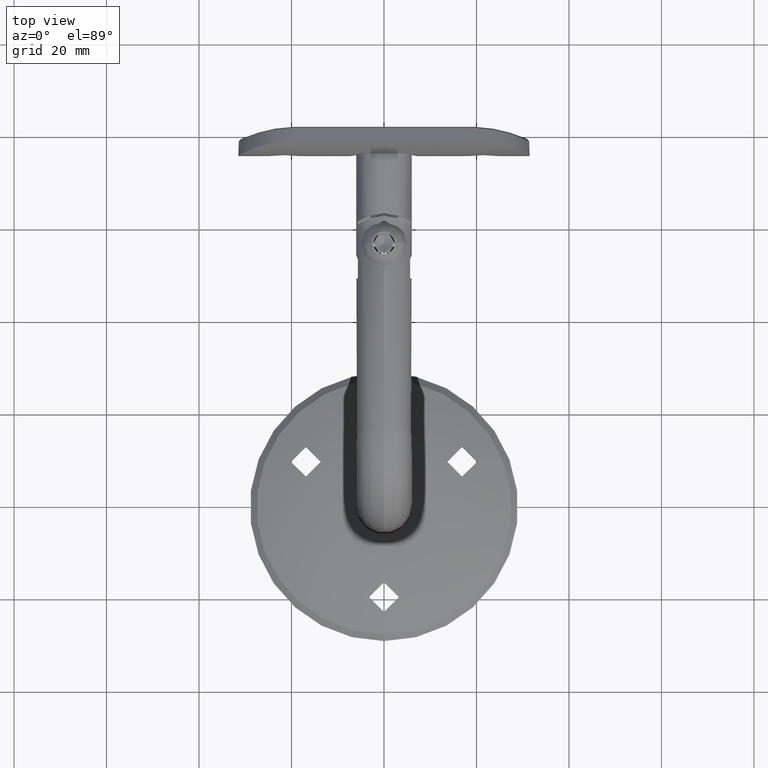
[diagram: clean part render]
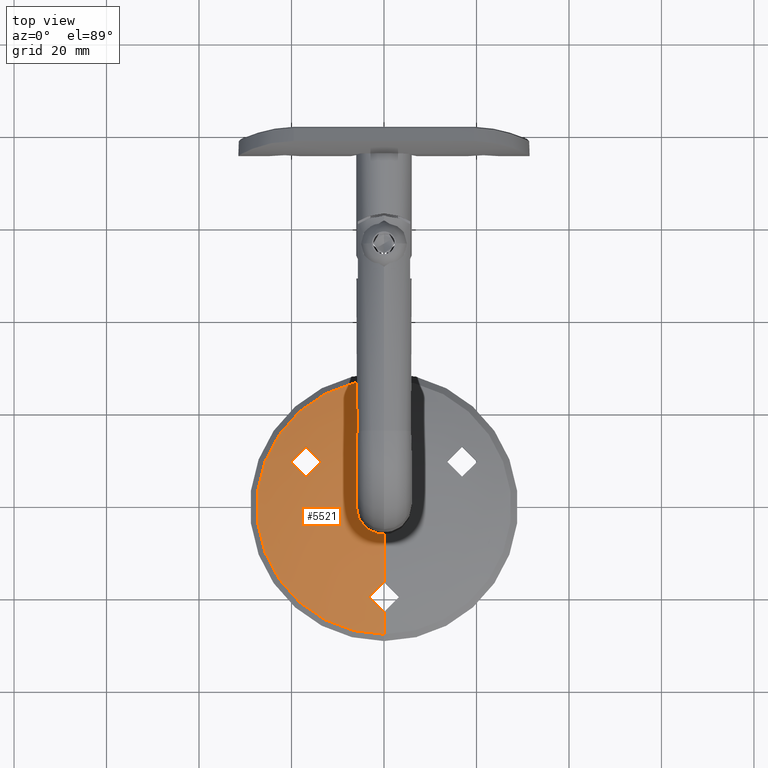
[diagram: same view with one face highlighted and labeled with its STEP entity id]
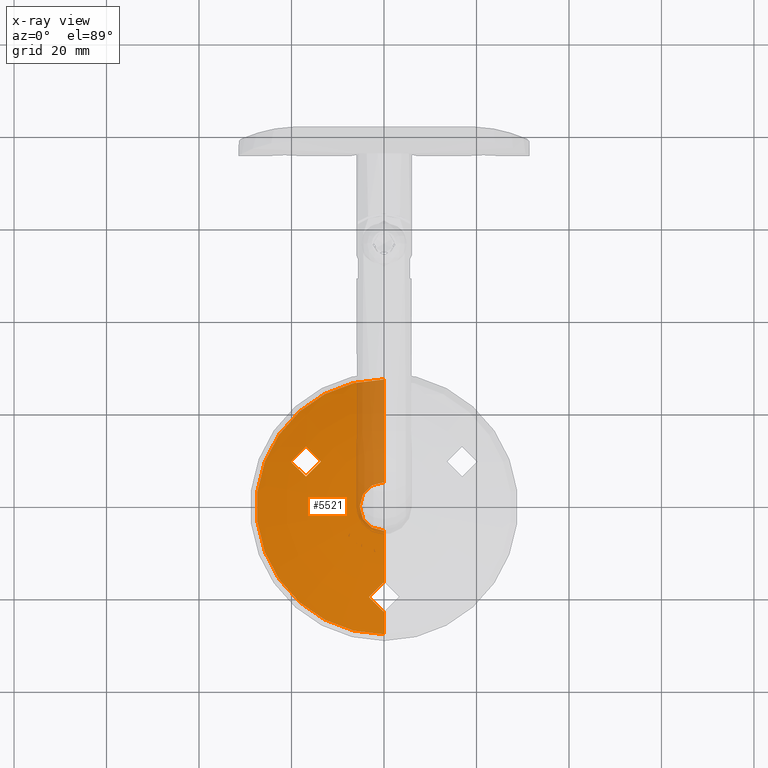
[diagram: x-ray of the same camera — body ghosted, the highlighted face saturated]
A machine part, top view. The second image highlights one B-rep face of the part: STEP entity #5521.
The next image is the same camera in x-ray: the body ghosted, the highlighted face saturated — about 13% of this face is hidden behind the body in this view.
In plain terms, the highlighted toroidal blend (fillet) surface has major radius 5.25 mm and minor (blend) radius 70.5081 mm.
Its self-contained STEP definition (entity closure, byte-faithful):
#36 = CIRCLE ( 'NONE', #8325, 27.54999999999999716 ) ;
#103 = CARTESIAN_POINT ( 'NONE',  ( -19.96137476404623357, 6.039042660600626888, -8.673453458701036567 ) ) ;
#159 = CARTESIAN_POINT ( 'NONE',  ( -4.609694209175250853E-14, 5.793744438677357778, 22.75000000000109779 ) ) ;
#479 = ORIENTED_EDGE ( 'NONE', *, *, #9711, .T. ) ;
#720 = CARTESIAN_POINT ( 'NONE',  ( -3.166677742492574055, 6.662795183297255619, 18.65648535947543607 ) ) ;
#1072 = CARTESIAN_POINT ( 'NONE',  ( -15.46132909030571234, 6.441415955272104199, -12.67786978009806198 ) ) ;
#1115 = CARTESIAN_POINT ( 'NONE',  ( -15.44834657022301094, 7.032808200617978400, -6.828267959478819371 ) ) ;
#1278 = CARTESIAN_POINT ( 'NONE',  ( -14.32056523321980812, 6.738997915008046569, -11.75449133307809824 ) ) ;
#1328 = CARTESIAN_POINT ( 'NONE',  ( -20.13938038033285238, 5.868821188330352712, -9.932309515252411458 ) ) ;
#1386 = CARTESIAN_POINT ( 'NONE',  ( -19.73738698471576569, 5.787608313314743569, -11.36976278019478137 ) ) ;
#1419 = CARTESIAN_POINT ( 'NONE',  ( -14.43336921041712273, 7.126429179213712217, -7.608592909778308488 ) ) ;
#1453 = CARTESIAN_POINT ( 'NONE',  ( -16.88749537379636934, 6.820047322506161080, -6.499999999999994671 ) ) ;
#1455 = CARTESIAN_POINT ( 'NONE',  ( -16.88749537381466581, 6.146212153112459831, -12.99999999999999467 ) ) ;
#1671 = FACE_OUTER_BOUND ( 'NONE', #3727, .T. ) ;
#1708 = CIRCLE ( 'NONE', #5823, 70.50805198092858461 ) ;
#1759 = VERTEX_POINT ( 'NONE', #1453 ) ;
#1951 = B_SPLINE_CURVE_WITH_KNOTS ( 'NONE', 3,
 ( #159, #9405, #15177, #4829, #16630, #18282, #13858, #8022, #12209, #15363, #15240, #6361, #4898, #15297, #10910, #12388, #6552, #2025, #720, #6424, #7770, #16828, #18161, #16695, #10845, #6488, #7893, #18035, #10973, #2082 ),
 .UNSPECIFIED., .F., .F.,
 ( 4, 2, 2, 2, 2, 2, 2, 2, 2, 2, 2, 2, 2, 2, 4 ),
 ( 0.01461833646250698324, 0.01525996222272465661, 0.01590158798294232997, 0.01654321374316000681, 0.01718483950337768018, 0.01782646526359535355, 0.01846809102381302692, 0.01910971678403070029, 0.01975134254424837713, 0.02103459406468373427, 0.02231784558511909142, 0.02295947134533677519, 0.02360109710555445550, 0.02424272286577213928, 0.02488434862598981959 ),
 .UNSPECIFIED. ) ;
#2025 = CARTESIAN_POINT ( 'NONE',  ( -3.250604130810204939, 6.575917868337124439, 19.08099595883461674 ) ) ;
#2082 = CARTESIAN_POINT ( 'NONE',  ( 1.992262963256047854E-15, 7.136656318735704829, 16.24999999999999645 ) ) ;
#2348 = CARTESIAN_POINT ( 'NONE',  ( -16.88749537379636934, 6.820047322506161080, -6.499999999999994671 ) ) ;
#2556 = CARTESIAN_POINT ( 'NONE',  ( -15.27340801719645569, 6.485603780500401427, -12.57875547102293901 ) ) ;
#2601 = CARTESIAN_POINT ( 'NONE',  ( -16.04682561275656383, 6.953882947119673474, -6.603353883330276730 ) ) ;
#2626 = CARTESIAN_POINT ( 'NONE',  ( -15.25812621377190936, 7.054774012848352704, -6.929719668702913893 ) ) ;
#2685 = CARTESIAN_POINT ( 'NONE',  ( -16.46751255589565943, 6.226057270874720828, -12.97973465348839284 ) ) ;
#2701 = CARTESIAN_POINT ( 'NONE',  ( -13.98145540347557514, 6.851296440063799231, -11.22054059266102044 ) ) ;
#2868 = CARTESIAN_POINT ( 'NONE',  ( -17.93120958819713451, 5.969181775287405678, -12.83522427435549318 ) ) ;
#3040 = AXIS2_PLACEMENT_3D ( 'NONE', #16933, #17060, #3811 ) ;
#3182 = VERTEX_POINT ( 'NONE', #4195 ) ;
#3352 = CARTESIAN_POINT ( 'NONE',  ( 0.000000000000000000, -62.50805198092858461, 0.000000000000000000 ) ) ;
#3489 = DIRECTION ( 'NONE',  ( 0.000000000000000000, 0.000000000000000000, -1.000000000000000000 ) ) ;
#3592 = EDGE_CURVE ( 'NONE', #12844, #4355, #1708, .T. ) ;
#3606 = ORIENTED_EDGE ( 'NONE', *, *, #10666, .F. ) ;
#3727 = EDGE_LOOP ( 'NONE', ( #14391, #479, #16973, #18154, #3606, #14074 ) ) ;
#3811 = DIRECTION ( 'NONE',  ( -1.224646799147353207E-16, 0.000000000000000000, -1.000000000000000000 ) ) ;
#3851 = CARTESIAN_POINT ( 'NONE',  ( -16.67621779645669022, 6.856580477207796065, -6.500000000000007994 ) ) ;
#4195 = CARTESIAN_POINT ( 'NONE',  ( -16.88749537381466581, 6.146212153112459831, -12.99999999999999467 ) ) ;
#4209 = CARTESIAN_POINT ( 'NONE',  ( -13.63554723584043060, 7.071473833728807001, -9.566437804260287336 ) ) ;
#4317 = CARTESIAN_POINT ( 'NONE',  ( -19.79495921775694711, 6.112170120605252777, -8.282232662358389064 ) ) ;
#4355 = VERTEX_POINT ( 'NONE', #6690 ) ;
#4452 = CARTESIAN_POINT ( 'NONE',  ( -20.12060868951598636, 5.849173073577747850, -10.14443995163661327 ) ) ;
#4513 = CARTESIAN_POINT ( 'NONE',  ( -20.13531521472196317, 5.916116254931264251, -9.505747802510539302 ) ) ;
#4607 = CIRCLE ( 'NONE', #7357, 70.50805198092858461 ) ;
#4829 = CARTESIAN_POINT ( 'NONE',  ( -0.8494870458024148530, 5.816924342189370378, 22.64438324407443304 ) ) ;
#4898 = CARTESIAN_POINT ( 'NONE',  ( -2.925324134352727867, 6.187612174745771298, 20.93161279124760199 ) ) ;
#5399 = ORIENTED_EDGE ( 'NONE', *, *, #6839, .T. ) ;
#5521 = ADVANCED_FACE ( 'NONE', ( #1671, #16820 ), #8305, .T. ) ;
#5608 = DIRECTION ( 'NONE',  ( 0.000000000000000000, -1.000000000000000000, 0.000000000000000000 ) ) ;
#5643 = CARTESIAN_POINT ( 'NONE',  ( -13.79597766813787452, 7.125284141914178804, -8.724564337970335259 ) ) ;
#5669 = CARTESIAN_POINT ( 'NONE',  ( 0.000000000000000000, 4.380627137030746354, 0.000000000000000000 ) ) ;
#5697 = CARTESIAN_POINT ( 'NONE',  ( -13.65488840670230708, 7.088774160865691343, -9.352119876174844748 ) ) ;
#5816 = CARTESIAN_POINT ( 'NONE',  ( -19.01880885926125586, 6.360689461337947215, -7.287253841720520597 ) ) ;
#5823 = AXIS2_PLACEMENT_3D ( 'NONE', #8564, #15980, #13259 ) ;
#5902 = DIRECTION ( 'NONE',  ( 0.000000000000000000, 0.000000000000000000, 1.000000000000000000 ) ) ;
#5981 = VERTEX_POINT ( 'NONE', #13335 ) ;
#6002 = CARTESIAN_POINT ( 'NONE',  ( -19.32121732681181570, 6.273960264196771774, -7.585603255210444651 ) ) ;
#6361 = CARTESIAN_POINT ( 'NONE',  ( -2.826873719888854719, 6.147892731092166052, 21.11741263777578936 ) ) ;
#6424 = CARTESIAN_POINT ( 'NONE',  ( -2.847666753398638395, 6.819799524599233109, 17.87822352490695366 ) ) ;
#6443 = DIRECTION ( 'NONE',  ( 0.000000000000000000, -1.000000000000000000, 0.000000000000000000 ) ) ;
#6488 = CARTESIAN_POINT ( 'NONE',  ( -1.057765374599709096, 7.104450353168404675, 16.41950708597058295 ) ) ;
#6552 = CARTESIAN_POINT ( 'NONE',  ( -3.249692923267132105, 6.443997527936556224, 19.71649204351626139 ) ) ;
#6690 = CARTESIAN_POINT ( 'NONE',  ( 1.992262963256047854E-15, 7.136656318735704829, 16.24999999999999645 ) ) ;
#6839 = EDGE_CURVE ( 'NONE', #3182, #1759, #10197, .T. ) ;
#6903 = CARTESIAN_POINT ( 'NONE',  ( -18.31783265609580269, 6.535477613177278933, -6.824048862705085483 ) ) ;
#7107 = CARTESIAN_POINT ( 'NONE',  ( -13.63975360178866403, 7.029294195318215088, -9.997052937679622886 ) ) ;
#7165 = CARTESIAN_POINT ( 'NONE',  ( -14.08270271650012617, 6.815417133955788742, -11.40537125762248039 ) ) ;
#7186 = VERTEX_POINT ( 'NONE', #17203 ) ;
#7216 = CARTESIAN_POINT ( 'NONE',  ( -19.03625999361851484, 5.829979597320061657, -12.19788801209112705 ) ) ;
#7282 = CARTESIAN_POINT ( 'NONE',  ( -19.49469659803568788, 5.793339938569650016, -11.73805991380500835 ) ) ;
#7357 = AXIS2_PLACEMENT_3D ( 'NONE', #15922, #17383, #5902 ) ;
#7770 = CARTESIAN_POINT ( 'NONE',  ( -2.608203380103311098, 6.891792059849414009, 17.51523007573061008 ) ) ;
#7893 = CARTESIAN_POINT ( 'NONE',  ( -0.8489279095186406110, 7.116619733217722121, 16.35553845011500584 ) ) ;
#8022 = CARTESIAN_POINT ( 'NONE',  ( -1.996075206246976874, 5.941531170650627303, 22.07379021109564832 ) ) ;
#8192 = EDGE_CURVE ( 'NONE', #1759, #3182, #16629, .T. ) ;
#8305 = TOROIDAL_SURFACE ( 'NONE', #12950, 5.250000000000000000, 70.50805198092858461 ) ;
#8325 = AXIS2_PLACEMENT_3D ( 'NONE', #5669, #5608, #11313 ) ;
#8495 = CARTESIAN_POINT ( 'NONE',  ( -17.31286820643705937, 6.744107652333877212, -6.521071669316895303 ) ) ;
#8564 = CARTESIAN_POINT ( 'NONE',  ( 6.429395695523604153E-16, -62.50805198092858461, 5.250000000000000000 ) ) ;
#8566 = CARTESIAN_POINT ( 'NONE',  ( -14.45827733477081445, 6.698212812521322057, -11.91922808120207300 ) ) ;
#8667 = CARTESIAN_POINT ( 'NONE',  ( -20.04061380268973735, 5.818140152859966108, -10.56636313066158905 ) ) ;
#8728 = CARTESIAN_POINT ( 'NONE',  ( -17.09808489436565182, 6.107172339728258237, -12.99999999999882760 ) ) ;
#8772 = DIRECTION ( 'NONE',  ( 0.000000000000000000, -1.000000000000000000, 0.000000000000000000 ) ) ;
#9390 = CARTESIAN_POINT ( 'NONE',  ( -4.609694209175250853E-14, 5.793744438677357778, 22.75000000000109779 ) ) ;
#9405 = CARTESIAN_POINT ( 'NONE',  ( -0.2147862826052898411, 5.793744438677607356, 22.75000000000000711 ) ) ;
#9711 = EDGE_CURVE ( 'NONE', #12844, #5981, #13078, .T. ) ;
#9776 = CARTESIAN_POINT ( 'NONE',  ( -17.92734521113940005, 6.621507180969622652, -6.663615851072540508 ) ) ;
#9906 = CARTESIAN_POINT ( 'NONE',  ( -14.90043892189490471, 7.091230476169230634, -7.169218788099881223 ) ) ;
#10082 = CARTESIAN_POINT ( 'NONE',  ( -18.32528665999805284, 5.912679359765666831, -12.67244835741151654 ) ) ;
#10146 = CARTESIAN_POINT ( 'NONE',  ( -20.11175787295643147, 5.944038107920170511, -9.290019162790699170 ) ) ;
#10197 = B_SPLINE_CURVE_WITH_KNOTS ( 'NONE', 3,
 ( #14347, #17166, #2685, #18643, #17300, #1072, #2556, #12799, #14283, #8566, #1278, #7165, #2701, #18849, #13011, #11540, #7107, #4209, #5697, #12940, #5643, #15984, #15916, #17377, #1419, #12530, #9906, #2626, #1115, #11316, #2601, #12655, #3851, #2348 ),
 .UNSPECIFIED., .F., .F.,
 ( 4, 2, 2, 2, 2, 2, 2, 2, 2, 2, 2, 2, 2, 2, 2, 2, 4 ),
 ( 0.002592582207815472689, 0.003234283589836495741, 0.003875984971857518360, 0.004517686353878540978, 0.005159387735899564030, 0.005801089117920587082, 0.006442790499941609267, 0.007084491881962632319, 0.007726193263983655371, 0.008367894646004677556, 0.009009596028025701475, 0.009651297410046723660, 0.01029299879206774238, 0.01093470017408876456, 0.01157640155610978501, 0.01221810293813080546, 0.01285980432015182591 ),
 .UNSPECIFIED. ) ;
#10341 = CARTESIAN_POINT ( 'NONE',  ( -19.69232514340022178, 6.151313508692281218, -8.094843231738192202 ) ) ;
#10666 = EDGE_CURVE ( 'NONE', #12664, #16248, #17649, .T. ) ;
#10845 = CARTESIAN_POINT ( 'NONE',  ( -1.452592685227002800, 7.072825445408654765, 16.58481927285588142 ) ) ;
#10910 = CARTESIAN_POINT ( 'NONE',  ( -3.147483796427492209, 6.313905140032782803, 20.33654291387544433 ) ) ;
#10973 = CARTESIAN_POINT ( 'NONE',  ( -0.2161994990050964960, 7.136656318735712823, 16.24999999999999289 ) ) ;
#11313 = DIRECTION ( 'NONE',  ( 0.000000000000000000, 0.000000000000000000, -1.000000000000000000 ) ) ;
#11316 = CARTESIAN_POINT ( 'NONE',  ( -15.84109508301126468, 6.982569746815600276, -6.665731233034376757 ) ) ;
#11526 = CARTESIAN_POINT ( 'NONE',  ( -17.09881123439759421, 6.783507548037593260, -6.499999999999981348 ) ) ;
#11540 = CARTESIAN_POINT ( 'NONE',  ( -13.66300674071431587, 7.004931552799104288, -10.20848115230000808 ) ) ;
#11649 = CARTESIAN_POINT ( 'NONE',  ( -20.02467087558884629, 6.005396747237801591, -8.875025197481276606 ) ) ;
#11841 = CARTESIAN_POINT ( 'NONE',  ( -18.87099154800128176, 5.846498663725057554, -12.33334249040133024 ) ) ;
#12037 = EDGE_LOOP ( 'NONE', ( #5399, #18074 ) ) ;
#12209 = CARTESIAN_POINT ( 'NONE',  ( -2.159365237915294333, 5.971006935869962895, 21.93813012095986892 ) ) ;
#12337 = EDGE_CURVE ( 'NONE', #12664, #4355, #1951, .T. ) ;
#12388 = CARTESIAN_POINT ( 'NONE',  ( -3.228880333792092383, 6.400380584981661514, 19.92519417397171821 ) ) ;
#12530 = CARTESIAN_POINT ( 'NONE',  ( -14.73556990176859571, 7.105502245658629867, -7.305091757412469633 ) ) ;
#12655 = CARTESIAN_POINT ( 'NONE',  ( -16.46581134939877344, 6.890652708540771165, -6.520404047833941341 ) ) ;
#12664 = VERTEX_POINT ( 'NONE', #9390 ) ;
#12709 = CARTESIAN_POINT ( 'NONE',  ( 3.373901931650957986E-15, 4.380627137030746354, 27.54999999999999716 ) ) ;
#12799 = CARTESIAN_POINT ( 'NONE',  ( -14.92076493267558313, 6.572789844037355778, -12.34597898326365595 ) ) ;
#12844 = VERTEX_POINT ( 'NONE', #17186 ) ;
#12940 = CARTESIAN_POINT ( 'NONE',  ( -13.73468939490379803, 7.115596454264380810, -8.932766339349933915 ) ) ;
#12950 = AXIS2_PLACEMENT_3D ( 'NONE', #3352, #8772, #17647 ) ;
#13011 = CARTESIAN_POINT ( 'NONE',  ( -13.75000288717430585, 6.949723699065288862, -10.62388374986598016 ) ) ;
#13078 = CIRCLE ( 'NONE', #16552, 5.250000000000000000 ) ;
#13250 = CARTESIAN_POINT ( 'NONE',  ( -19.97894916327802051, 5.806936702507370818, -10.77526429861947221 ) ) ;
#13259 = DIRECTION ( 'NONE',  ( -1.224646799147353207E-16, 0.000000000000000000, -1.000000000000000000 ) ) ;
#13335 = CARTESIAN_POINT ( 'NONE',  ( 0.000000000000000000, 8.000000000000000000, -5.250000000000000000 ) ) ;
#13815 = CARTESIAN_POINT ( 'NONE',  ( 0.000000000000000000, 8.000000000000000000, 0.000000000000000000 ) ) ;
#13858 = CARTESIAN_POINT ( 'NONE',  ( -1.639682916478672148, 5.889153065649447960, 22.31427649905507238 ) ) ;
#14074 = ORIENTED_EDGE ( 'NONE', *, *, #12337, .T. ) ;
#14283 = CARTESIAN_POINT ( 'NONE',  ( -14.75782553690170573, 6.615303192311229985, -12.21397182110996127 ) ) ;
#14287 = CARTESIAN_POINT ( 'NONE',  ( -17.72634066487190552, 6.663224371610320773, -6.603055642519666257 ) ) ;
#14347 = CARTESIAN_POINT ( 'NONE',  ( -16.88749537381466581, 6.146212153112459831, -12.99999999999999467 ) ) ;
#14391 = ORIENTED_EDGE ( 'NONE', *, *, #3592, .F. ) ;
#14743 = CARTESIAN_POINT ( 'NONE',  ( -17.31208745922365111, 6.069546518262995960, -12.97913139807166338 ) ) ;
#15177 = CARTESIAN_POINT ( 'NONE',  ( -0.4276443912627497235, 5.798377057814571245, 22.72891537535806350 ) ) ;
#15240 = CARTESIAN_POINT ( 'NONE',  ( -2.593388006157324899, 6.072163381908345592, 21.47017190076257975 ) ) ;
#15297 = CARTESIAN_POINT ( 'NONE',  ( -3.085899701944630813, 6.270600662289827376, 20.54127782297921101 ) ) ;
#15363 = CARTESIAN_POINT ( 'NONE',  ( -2.457469596971434633, 6.036106627857236617, 21.63733008620797449 ) ) ;
#15466 = EDGE_CURVE ( 'NONE', #5981, #7186, #4607, .T. ) ;
#15775 = CARTESIAN_POINT ( 'NONE',  ( -18.50614984915462813, 6.491359127835187870, -6.923986326316278195 ) ) ;
#15916 = CARTESIAN_POINT ( 'NONE',  ( -14.05851392103360098, 7.137988452540676931, -8.135887197430719198 ) ) ;
#15922 = CARTESIAN_POINT ( 'NONE',  ( 0.000000000000000000, -62.50805198092858461, -5.250000000000000000 ) ) ;
#15980 = DIRECTION ( 'NONE',  ( 1.000000000000000000, 0.000000000000000000, -1.224646799147353207E-16 ) ) ;
#15984 = CARTESIAN_POINT ( 'NONE',  ( -13.95855796168041074, 7.136466421701153529, -8.325105036408045223 ) ) ;
#16028 = CARTESIAN_POINT ( 'NONE',  ( -18.51666813087896202, 5.887671819744411117, -12.57023254774819243 ) ) ;
#16055 = EDGE_CURVE ( 'NONE', #16248, #7186, #36, .T. ) ;
#16096 = CARTESIAN_POINT ( 'NONE',  ( -18.85560455139376401, 6.404187595965683322, -7.155208705983906903 ) ) ;
#16248 = VERTEX_POINT ( 'NONE', #12709 ) ;
#16552 = AXIS2_PLACEMENT_3D ( 'NONE', #13815, #6443, #3489 ) ;
#16629 = B_SPLINE_CURVE_WITH_KNOTS ( 'NONE', 3,
 ( #17303, #11526, #8495, #14287, #9776, #6903, #15775, #16096, #5816, #6002, #17668, #10341, #4317, #103, #11649, #10146, #4513, #1328, #4452, #8667, #13250, #1386, #7282, #7216, #11841, #16028, #10082, #2868, #17548, #14743, #8728, #1455 ),
 .UNSPECIFIED., .F., .F.,
 ( 4, 2, 2, 2, 2, 2, 2, 2, 2, 2, 2, 2, 2, 2, 2, 4 ),
 ( 0.01285980432015182591, 0.01350162197774808573, 0.01414343963534434381, 0.01478525729294060190, 0.01542707495053686172, 0.01606889260813312154, 0.01671071026572937962, 0.01735252792332564464, 0.01799434558092190273, 0.01863616323851816428, 0.01927798089611442584, 0.02056161621130695241, 0.02120343386890321397, 0.02184525152649947205, 0.02248706918409572666, 0.02312888684169198475 ),
 .UNSPECIFIED. ) ;
#16630 = CARTESIAN_POINT ( 'NONE',  ( -1.057431236929632590, 5.830921314657634191, 22.58055756177896001 ) ) ;
#16695 = CARTESIAN_POINT ( 'NONE',  ( -1.639976476496086688, 7.053406407040822224, 16.68597382287154218 ) ) ;
#16820 = FACE_BOUND ( 'NONE', #12037, .T. ) ;
#16828 = CARTESIAN_POINT ( 'NONE',  ( -2.161157074928252708, 6.980287501452429488, 17.06344829142612340 ) ) ;
#16933 = CARTESIAN_POINT ( 'NONE',  ( 6.429395695523604153E-16, -62.50805198092858461, 5.250000000000000000 ) ) ;
#16973 = ORIENTED_EDGE ( 'NONE', *, *, #15466, .T. ) ;
#17060 = DIRECTION ( 'NONE',  ( 1.000000000000000000, 0.000000000000000000, -1.224646799147353207E-16 ) ) ;
#17166 = CARTESIAN_POINT ( 'NONE',  ( -16.67694400493705587, 6.185244893807517741, -13.00000000000117417 ) ) ;
#17186 = CARTESIAN_POINT ( 'NONE',  ( 2.008420750601658165E-15, 8.000000000000000000, 5.250000000000000000 ) ) ;
#17203 = CARTESIAN_POINT ( 'NONE',  ( 0.000000000000000000, 4.380627137030746354, -27.54999999999999716 ) ) ;
#17300 = CARTESIAN_POINT ( 'NONE',  ( -15.84895660917657878, 6.354479903823975206, -12.83671491261489450 ) ) ;
#17303 = CARTESIAN_POINT ( 'NONE',  ( -16.88749537379636934, 6.820047322506161080, -6.499999999999994671 ) ) ;
#17377 = CARTESIAN_POINT ( 'NONE',  ( -14.29515235397840200, 7.133048369787571730, -7.778134419618078610 ) ) ;
#17383 = DIRECTION ( 'NONE',  ( -1.000000000000000000, -0.000000000000000000, -0.000000000000000000 ) ) ;
#17548 = CARTESIAN_POINT ( 'NONE',  ( -17.72854553966203284, 6.000599053151609574, -12.89645874651445112 ) ) ;
#17647 = DIRECTION ( 'NONE',  ( 0.000000000000000000, 0.000000000000000000, -1.000000000000000000 ) ) ;
#17649 = CIRCLE ( 'NONE', #3040, 70.50805198092858461 ) ;
#17668 = CARTESIAN_POINT ( 'NONE',  ( -19.45595272687833699, 6.232001335927177976, -7.747591253170829972 ) ) ;
#18035 = CARTESIAN_POINT ( 'NONE',  ( -0.4291873334340429169, 7.132612528802857454, 16.27136015215624099 ) ) ;
#18074 = ORIENTED_EDGE ( 'NONE', *, *, #8192, .T. ) ;
#18154 = ORIENTED_EDGE ( 'NONE', *, *, #16055, .F. ) ;
#18161 = CARTESIAN_POINT ( 'NONE',  ( -1.994692732258120715, 7.007152888528025869, 16.92522485003031463 ) ) ;
#18282 = CARTESIAN_POINT ( 'NONE',  ( -1.450980281421973661, 5.866942128745099794, 22.41593071508783552 ) ) ;
#18643 = CARTESIAN_POINT ( 'NONE',  ( -16.05092105123902968, 6.311199432665163478, -12.89765228418152532 ) ) ;
#18849 = CARTESIAN_POINT ( 'NONE',  ( -13.81486742356634956, 6.918468249410281601, -10.83005343535915799 ) ) ;